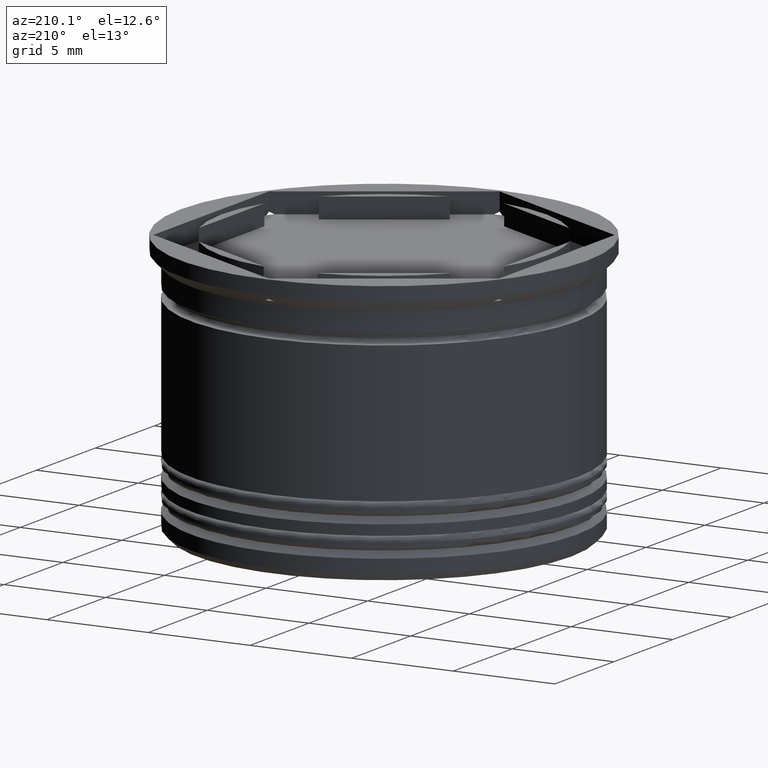
[diagram: clean part render]
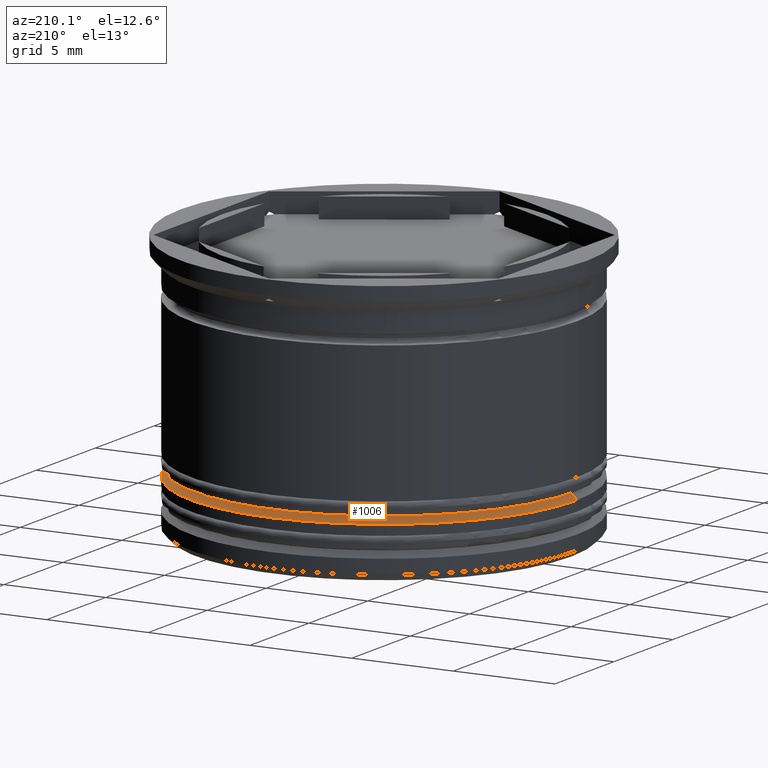
[diagram: same view with one face highlighted and labeled with its STEP entity id]
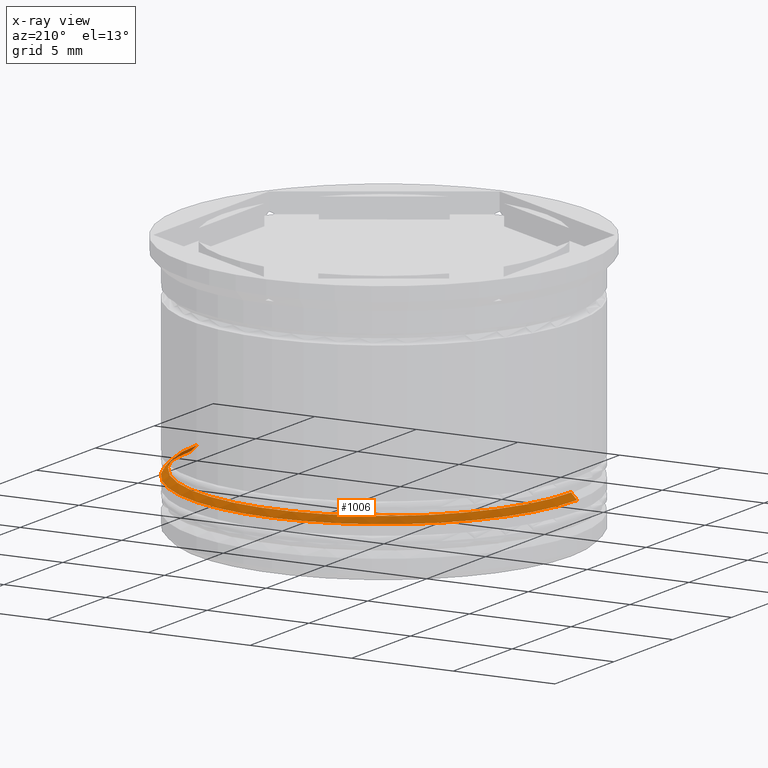
[diagram: x-ray of the same camera — body ghosted, the highlighted face saturated]
A machine part, auxiliary view. The second image highlights one B-rep face of the part: STEP entity #1006.
The next image is the same camera in x-ray: the body ghosted, the highlighted face saturated — about 2% of this face is hidden behind the body in this view.
In plain terms, the highlighted conical surface has half-angle 45 deg.
Its self-contained STEP definition (entity closure, byte-faithful):
#8 = CIRCLE ( 'NONE', #1205, 9.199999999999999289 ) ;
#35 = DIRECTION ( 'NONE',  ( 0.7071067811865512365, 8.659560562354978464E-17, -0.7071067811865439090 ) ) ;
#122 = VECTOR ( 'NONE', #1802, 1000.000000000000000 ) ;
#135 = CARTESIAN_POINT ( 'NONE',  ( 0.000000000000000000, 0.000000000000000000, -10.00000000000000000 ) ) ;
#143 = EDGE_CURVE ( 'NONE', #290, #1772, #859, .T. ) ;
#234 = EDGE_CURVE ( 'NONE', #290, #321, #8, .T. ) ;
#236 = ORIENTED_EDGE ( 'NONE', *, *, #234, .F. ) ;
#290 = VERTEX_POINT ( 'NONE', #1611 ) ;
#321 = VERTEX_POINT ( 'NONE', #1272 ) ;
#338 = AXIS2_PLACEMENT_3D ( 'NONE', #2139, #634, #985 ) ;
#376 = CARTESIAN_POINT ( 'NONE',  ( 8.999999999999992895, 1.102182119232616925E-15, -10.00000000000000000 ) ) ;
#579 = EDGE_CURVE ( 'NONE', #321, #1454, #1101, .T. ) ;
#598 = FACE_OUTER_BOUND ( 'NONE', #980, .T. ) ;
#634 = DIRECTION ( 'NONE',  ( 0.000000000000000000, 0.000000000000000000, -1.000000000000000000 ) ) ;
#709 = AXIS2_PLACEMENT_3D ( 'NONE', #135, #1783, #1625 ) ;
#725 = ORIENTED_EDGE ( 'NONE', *, *, #143, .T. ) ;
#767 = CARTESIAN_POINT ( 'NONE',  ( -8.999999999999992895, 0.000000000000000000, -10.00000000000000000 ) ) ;
#859 = LINE ( 'NONE', #376, #1588 ) ;
#980 = EDGE_LOOP ( 'NONE', ( #236, #725, #1884, #1434 ) ) ;
#985 = DIRECTION ( 'NONE',  ( -1.000000000000000000, 0.000000000000000000, 0.000000000000000000 ) ) ;
#1006 = ADVANCED_FACE ( 'NONE', ( #598 ), #1633, .T. ) ;
#1101 = LINE ( 'NONE', #767, #122 ) ;
#1122 = CARTESIAN_POINT ( 'NONE',  ( 9.500000000000001776, 0.000000000000000000, -10.50000000000000355 ) ) ;
#1205 = AXIS2_PLACEMENT_3D ( 'NONE', #1369, #2034, #1885 ) ;
#1272 = CARTESIAN_POINT ( 'NONE',  ( -9.199999999999999289, 1.126675055215564822E-15, -10.20000000000000639 ) ) ;
#1369 = CARTESIAN_POINT ( 'NONE',  ( 0.000000000000000000, 0.000000000000000000, -10.20000000000000639 ) ) ;
#1434 = ORIENTED_EDGE ( 'NONE', *, *, #579, .F. ) ;
#1454 = VERTEX_POINT ( 'NONE', #1892 ) ;
#1464 = CIRCLE ( 'NONE', #338, 9.500000000000001776 ) ;
#1588 = VECTOR ( 'NONE', #35, 1000.000000000000000 ) ;
#1611 = CARTESIAN_POINT ( 'NONE',  ( 9.199999999999999289, 0.000000000000000000, -10.20000000000000639 ) ) ;
#1625 = DIRECTION ( 'NONE',  ( -1.000000000000000000, 0.000000000000000000, 0.000000000000000000 ) ) ;
#1633 = CONICAL_SURFACE ( 'NONE', #709, 8.999999999999992895, 0.7853981633974533860 ) ;
#1772 = VERTEX_POINT ( 'NONE', #1122 ) ;
#1783 = DIRECTION ( 'NONE',  ( 0.000000000000000000, 0.000000000000000000, -1.000000000000000000 ) ) ;
#1802 = DIRECTION ( 'NONE',  ( -0.7071067811865512365, 0.000000000000000000, -0.7071067811865439090 ) ) ;
#1884 = ORIENTED_EDGE ( 'NONE', *, *, #2136, .F. ) ;
#1885 = DIRECTION ( 'NONE',  ( -1.000000000000000000, 0.000000000000000000, 0.000000000000000000 ) ) ;
#1892 = CARTESIAN_POINT ( 'NONE',  ( -9.500000000000001776, 1.163414459189985682E-15, -10.50000000000000355 ) ) ;
#2034 = DIRECTION ( 'NONE',  ( -0.000000000000000000, -0.000000000000000000, 1.000000000000000000 ) ) ;
#2136 = EDGE_CURVE ( 'NONE', #1454, #1772, #1464, .T. ) ;
#2139 = CARTESIAN_POINT ( 'NONE',  ( 0.000000000000000000, 0.000000000000000000, -10.50000000000000355 ) ) ;